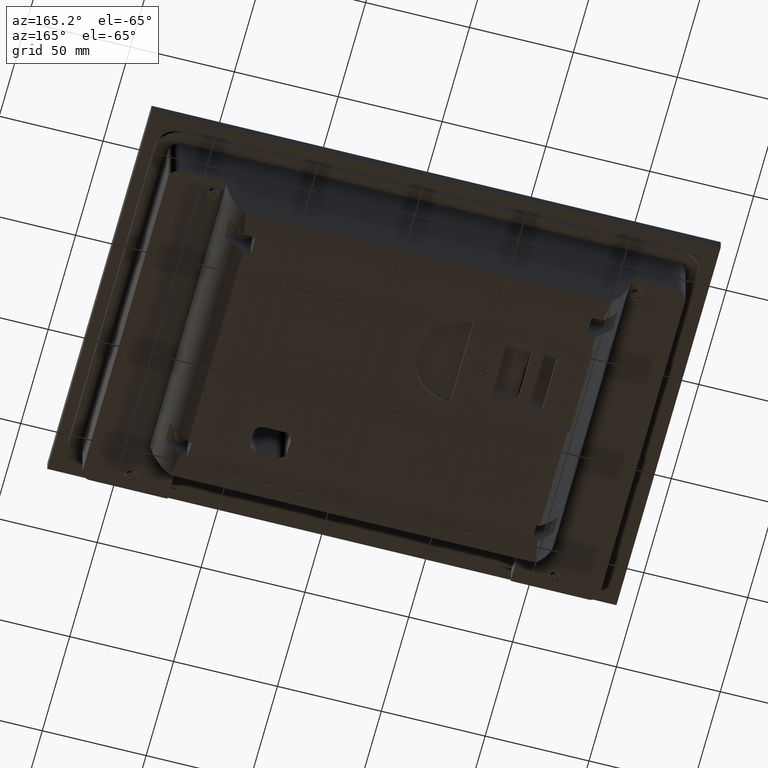
[diagram: clean part render]
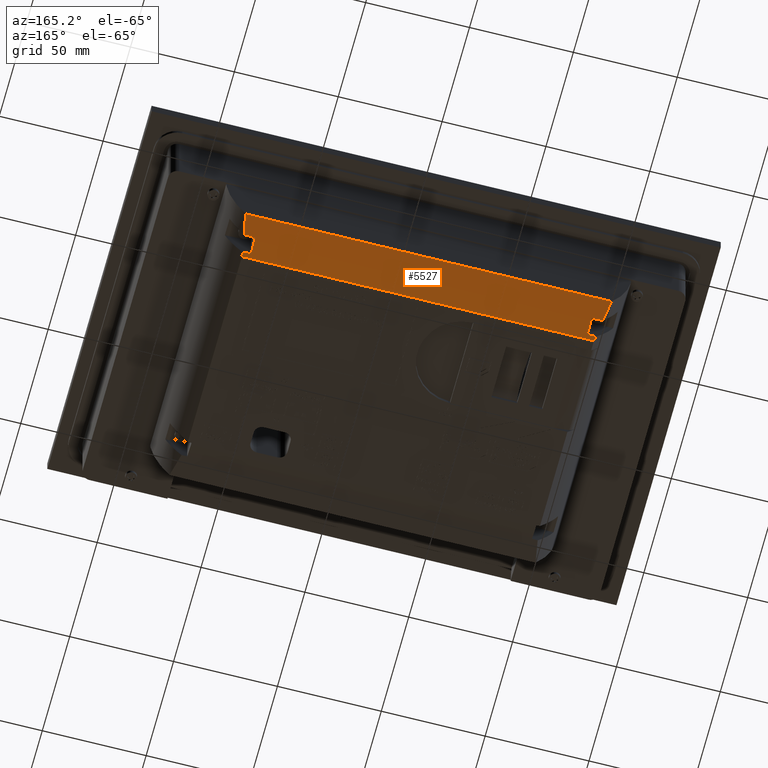
[diagram: same view with one face highlighted and labeled with its STEP entity id]
A machine part, auxiliary view. The second image highlights one B-rep face of the part: STEP entity #5527.
In plain terms, the highlighted cylindrical surface (partial cylindrical patch) has radius 150 mm, axis along (-1, 0, -0).
Its self-contained STEP definition (entity closure, byte-faithful):
#95=ELLIPSE('',#52425,3438.83786633973,150.000001119806);
#96=ELLIPSE('',#52426,3438.83786634376,150.000001119806);
#97=ELLIPSE('',#52428,3438.83786574438,150.000001119806);
#98=ELLIPSE('',#52429,3438.83786573963,150.000001119806);
#296=CYLINDRICAL_SURFACE('',#52430,150.000001119806);
#1262=CIRCLE('',#52424,150.000001119806);
#1263=CIRCLE('',#52427,150.000001119806);
#4039=B_SPLINE_CURVE_WITH_KNOTS('',3,(#69882,#69883,#69884,#69885),.UNSPECIFIED.,
 .F.,.F.,(4,4),(0.,1.),.UNSPECIFIED.);
#4040=B_SPLINE_CURVE_WITH_KNOTS('',3,(#69893,#69894,#69895,#69896),.UNSPECIFIED.,
 .F.,.F.,(4,4),(0.,1.),.UNSPECIFIED.);
#4041=B_SPLINE_CURVE_WITH_KNOTS('',3,(#69960,#69961,#69962,#69963),.UNSPECIFIED.,
 .F.,.F.,(4,4),(0.,1.),.UNSPECIFIED.);
#4043=B_SPLINE_CURVE_WITH_KNOTS('',3,(#69978,#69979,#69980,#69981),.UNSPECIFIED.,
 .F.,.F.,(4,4),(0.,1.),.UNSPECIFIED.);
#5527=ADVANCED_FACE('',(#10583),#296,.T.);
#10583=FACE_OUTER_BOUND('',#13279,.T.);
#13279=EDGE_LOOP('',(#18783,#18784,#18785,#18786,#18787,#18788,#18789,#18790,
#18791,#18792,#18793,#18794));
#18783=ORIENTED_EDGE('',*,*,#35021,.T.);
#18784=ORIENTED_EDGE('',*,*,#35022,.T.);
#18785=ORIENTED_EDGE('',*,*,#34948,.F.);
#18786=ORIENTED_EDGE('',*,*,#34996,.F.);
#18787=ORIENTED_EDGE('',*,*,#34985,.T.);
#18788=ORIENTED_EDGE('',*,*,#35023,.T.);
#18789=ORIENTED_EDGE('',*,*,#35024,.T.);
#18790=ORIENTED_EDGE('',*,*,#35025,.T.);
#18791=ORIENTED_EDGE('',*,*,#34992,.T.);
#18792=ORIENTED_EDGE('',*,*,#34933,.T.);
#18793=ORIENTED_EDGE('',*,*,#34952,.F.);
#18794=ORIENTED_EDGE('',*,*,#35026,.T.);
#30015=VERTEX_POINT('',#69846);
#30016=VERTEX_POINT('',#69848);
#30028=VERTEX_POINT('',#69881);
#30029=VERTEX_POINT('',#69886);
#30032=VERTEX_POINT('',#69892);
#30059=VERTEX_POINT('',#69958);
#30061=VERTEX_POINT('',#69964);
#30066=VERTEX_POINT('',#69982);
#30080=VERTEX_POINT('',#70039);
#30081=VERTEX_POINT('',#70040);
#30082=VERTEX_POINT('',#70043);
#30083=VERTEX_POINT('',#70045);
#34933=EDGE_CURVE('',#30016,#30015,#41170,.T.);
#34948=EDGE_CURVE('',#30028,#30029,#4039,.T.);
#34952=EDGE_CURVE('',#30032,#30015,#4040,.T.);
#34985=EDGE_CURVE('',#30061,#30059,#4041,.T.);
#34992=EDGE_CURVE('',#30066,#30016,#4043,.T.);
#34996=EDGE_CURVE('',#30061,#30028,#41204,.T.);
#35021=EDGE_CURVE('',#30080,#30081,#1262,.T.);
#35022=EDGE_CURVE('',#30081,#30029,#95,.T.);
#35023=EDGE_CURVE('',#30059,#30082,#96,.T.);
#35024=EDGE_CURVE('',#30082,#30083,#1263,.T.);
#35025=EDGE_CURVE('',#30083,#30066,#97,.T.);
#35026=EDGE_CURVE('',#30032,#30080,#98,.T.);
#41170=LINE('',#69847,#46746);
#41204=LINE('',#69989,#46780);
#46746=VECTOR('',#57458,1.);
#46780=VECTOR('',#57548,1.);
#52424=AXIS2_PLACEMENT_3D('',#70038,#57605,#57606);
#52425=AXIS2_PLACEMENT_3D('',#70041,#57607,#57608);
#52426=AXIS2_PLACEMENT_3D('',#70042,#57609,#57610);
#52427=AXIS2_PLACEMENT_3D('',#70044,#57611,#57612);
#52428=AXIS2_PLACEMENT_3D('',#70046,#57613,#57614);
#52429=AXIS2_PLACEMENT_3D('',#70047,#57615,#57616);
#52430=AXIS2_PLACEMENT_3D('',#70048,#57617,#57618);
#57458=DIRECTION('',(-0.999999348009036,1.49330969037705E-005,-0.00114182244892103));
#57548=DIRECTION('',(-0.999999348009036,1.49330969037705E-005,-0.00114182244892103));
#57605=DIRECTION('',(0.999999348009036,-1.49330969064192E-005,0.00114182244892096));
#57606=DIRECTION('',(0.00114182244904826,0.,-0.999999348120535));
#57607=DIRECTION('',(0.0436044401804935,0.998705872704188,0.0261769483078702));
#57608=DIRECTION('',(-0.999048221577937,0.0436193874551443,4.38710482872362E-013));
#57609=DIRECTION('',(-0.043634277753441,0.998707175449268,0.0260773371163726));
#57610=DIRECTION('',(-0.999046918841366,-0.0435895496872845,-0.00228147137434688));
#57611=DIRECTION('',(-0.999999348009036,1.49330969064053E-005,-0.00114182244892096));
#57612=DIRECTION('',(-0.00114182244904826,0.,0.999999348120535));
#57613=DIRECTION('',(-0.0436044401880451,-0.998705872703858,-0.0261769483078702));
#57614=DIRECTION('',(-0.999048221577607,0.0436193874626934,6.36578897234008E-013));
#57615=DIRECTION('',(0.043634277761104,-0.998707175448934,-0.0260773371163551));
#57616=DIRECTION('',(-0.999046918841032,-0.0435895496949449,-0.0022814713745469));
#57617=DIRECTION('',(-0.999999348009036,1.49330969037705E-005,-0.00114182244892103));
#57618=DIRECTION('',(-0.00114182244904835,0.,0.999999348120535));
#69846=CARTESIAN_POINT('',(-85.2407842851939,50.2478764301371,-69.1825515147683));
#69847=CARTESIAN_POINT('',(105.093244259914,50.2450341517916,-68.9652237064861));
#69848=CARTESIAN_POINT('',(84.2274097021357,50.2453457435242,-68.9890488003334));
#69881=CARTESIAN_POINT('',(-88.63660893118,69.656841962515,-63.9525295129692));
#69882=CARTESIAN_POINT('',(-88.63660893118,69.656841962515,-63.9525295129692));
#69883=CARTESIAN_POINT('',(-88.010965134831,66.6075643310009,-64.9978226636537));
#69884=CARTESIAN_POINT('',(-87.4106745002377,63.527179570696,-65.9441368236598));
#69885=CARTESIAN_POINT('',(-86.8548676796395,60.412488614821,-66.7920214674463));
#69886=CARTESIAN_POINT('',(-86.8548676796408,60.4124886148208,-66.7920214674464));
#69892=CARTESIAN_POINT('',(-85.5418752435762,52.3674239627401,-68.7453907461564));
#69893=CARTESIAN_POINT('',(-85.5418752435734,52.3674239627405,-68.7453907461562));
#69894=CARTESIAN_POINT('',(-85.4384580697126,51.6627682953054,-68.8960316091814));
#69895=CARTESIAN_POINT('',(-85.3380268273451,50.9562667646769,-69.0417610979653));
#69896=CARTESIAN_POINT('',(-85.2407842852471,50.2478764305244,-69.1825515146912));
#69958=CARTESIAN_POINT('',(85.8363340995879,60.4099097964804,-66.5948386485639));
#69960=CARTESIAN_POINT('',(87.6118629449231,69.6542100252894,-63.7512849199834));
#69961=CARTESIAN_POINT('',(86.9885166557887,66.6049510387514,-64.7980041986858));
#69962=CARTESIAN_POINT('',(86.3902964440018,63.524584177036,-65.7456868454788));
#69963=CARTESIAN_POINT('',(85.8363340995909,60.4099097964799,-66.594838648564));
#69964=CARTESIAN_POINT('',(87.6118629449231,69.6542100252889,-63.7512849199836));
#69978=CARTESIAN_POINT('',(84.5275650220689,52.3648843254526,-68.5512015088282));
#69979=CARTESIAN_POINT('',(84.4244710279071,51.6602317327347,-68.702078173189));
#69980=CARTESIAN_POINT('',(84.3243516865652,50.9537331875799,-68.8480366572875));
#69981=CARTESIAN_POINT('',(84.2274097021358,50.2453457435241,-68.9890488003334));
#69982=CARTESIAN_POINT('',(84.5275650220689,52.3648843254526,-68.5512015088282));
#69989=CARTESIAN_POINT('',(105.087557914959,69.6539490588723,-63.7313307661463));
#70038=CARTESIAN_POINT('',(-81.6623035061331,20.9854608933944,77.9396600282715));
#70039=CARTESIAN_POINT('',(-81.4943922057446,52.5431559846267,-68.7030486969348));
#70040=CARTESIAN_POINT('',(-81.4963951484045,60.1800263591243,-66.8490095847584));
#70041=CARTESIAN_POINT('',(729.007689294059,20.973355071942,78.8653018282275));
#70042=CARTESIAN_POINT('',(-730.357902367124,20.9951479339491,77.1989643480488));
#70043=CARTESIAN_POINT('',(80.4779987916254,60.1776075782214,-66.6640634650255));
#70044=CARTESIAN_POINT('',(80.3120904338968,20.9830421124967,78.1246061480058));
#70045=CARTESIAN_POINT('',(80.4800017342854,52.5407372037294,-68.5181025772005));
#70046=CARTESIAN_POINT('',(715.018400620469,20.9735639754816,78.8493285339611));
#70047=CARTESIAN_POINT('',(-716.368613691821,20.9949390304095,77.2149376423172));
#70048=CARTESIAN_POINT('',(104.924824613636,20.9826745679125,78.1527095387447));